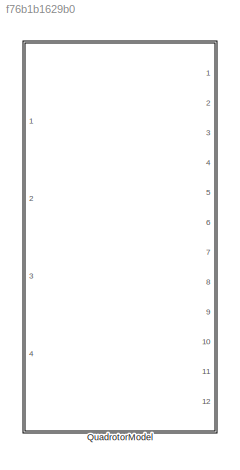
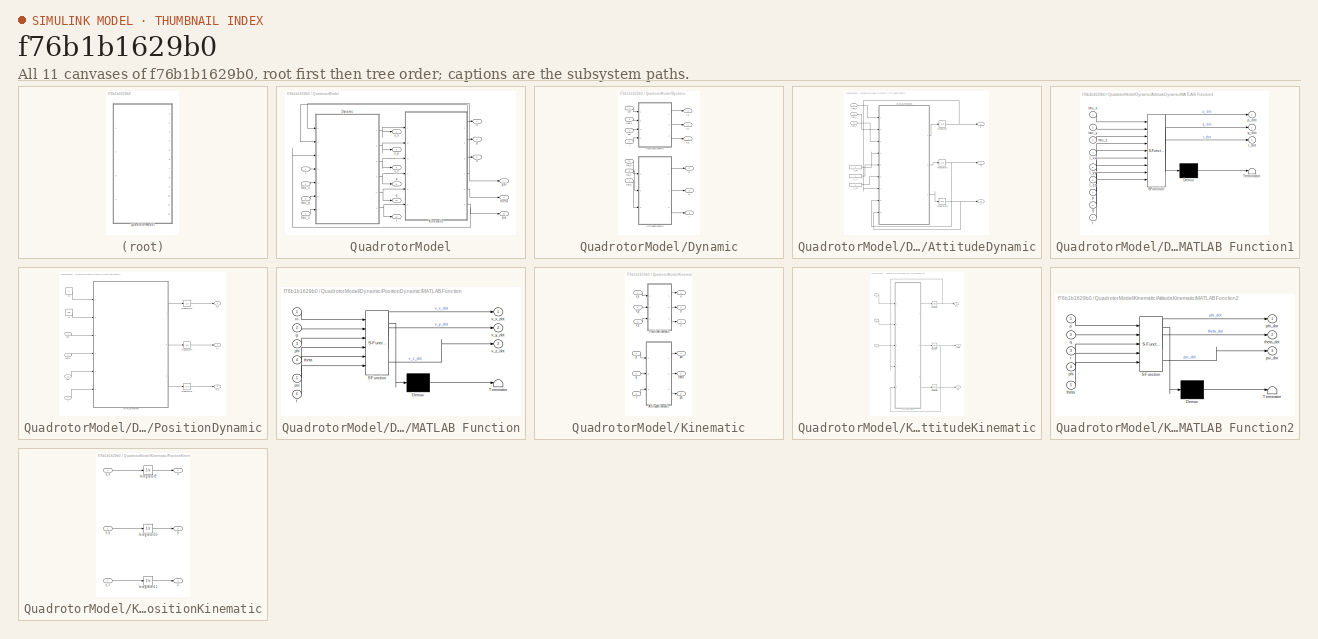
[diagram: thumbnail index - all 11 canvases of the model, root first then tree order]
MODEL slx_f76b1b1629b0
KIND model
CONFIG AbsTol = auto
CONFIG EnableMultiTasking = off
CONFIG FixedStep = auto
CONFIG MaxStep = auto
CONFIG MinStep = auto
CONFIG RelTol = 1e-3
CONFIG SampleTimeConstraint = Unconstrained
CONFIG SolverName = VariableStepAuto
CONFIG StartTime = 0.0
CONFIG StopTime = 10.0
WORKSPACE source: mxarray member
WORKSPACE x0 = 0
BLOCK [SubSystem] QuadrotorModel
  Ports = [4, 12]
  RequestExecContextInheritance = off
BLOCK [SubSystem] QuadrotorModel/Dynamic
  Ports = [7, 6]
  RequestExecContextInheritance = off
BLOCK [SubSystem] QuadrotorModel/Dynamic/AttitudeDynamic
  Ports = [3, 3]
  RequestExecContextInheritance = off
BLOCK [Constant] QuadrotorModel/Dynamic/AttitudeDynamic/I_xx
BLOCK [Constant] QuadrotorModel/Dynamic/AttitudeDynamic/I_yy
BLOCK [Constant] QuadrotorModel/Dynamic/AttitudeDynamic/I_zz
BLOCK [Integrator] QuadrotorModel/Dynamic/AttitudeDynamic/Integrator
  Ports = [1, 1]
BLOCK [Integrator] QuadrotorModel/Dynamic/AttitudeDynamic/Integrator1
  Ports = [1, 1]
BLOCK [Integrator] QuadrotorModel/Dynamic/AttitudeDynamic/Integrator2
  Ports = [1, 1]
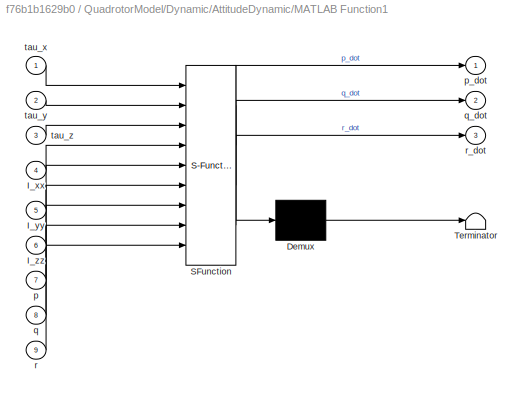
BLOCK [SubSystem] QuadrotorModel/Dynamic/AttitudeDynamic/MATLAB Function1
  ErrorFcn = Stateflow.Translate.translate
  PermitHierarchicalResolution = ExplicitOnly
  Ports = [9, 3]
  RequestExecContextInheritance = off
  SFBlockType = MATLAB Function
  TreatAsAtomicUnit = on
BLOCK [Demux] QuadrotorModel/Dynamic/AttitudeDynamic/MATLAB Function1/ Demux 
  Outputs = 1
  Ports = [1, 1]
BLOCK [S-Function] QuadrotorModel/Dynamic/AttitudeDynamic/MATLAB Function1/ SFunction 
  EnableBusSupport = off
  FunctionName = sf_sfun
  PortCounts = [9 4]
  Ports = [9, 4]
  SFcnIsStateOwnerBlock = off
  SFunctionDeploymentMode = off
  Tag = Stateflow S-Function 1
BLOCK [Terminator] QuadrotorModel/Dynamic/AttitudeDynamic/MATLAB Function1/ Terminator 
BLOCK [Inport] QuadrotorModel/Dynamic/AttitudeDynamic/MATLAB Function1/I_xx
  Port = 4
BLOCK [Inport] QuadrotorModel/Dynamic/AttitudeDynamic/MATLAB Function1/I_yy
  Port = 5
BLOCK [Inport] QuadrotorModel/Dynamic/AttitudeDynamic/MATLAB Function1/I_zz
  Port = 6
BLOCK [Inport] QuadrotorModel/Dynamic/AttitudeDynamic/MATLAB Function1/p
  Port = 7
BLOCK [Outport] QuadrotorModel/Dynamic/AttitudeDynamic/MATLAB Function1/p_dot
BLOCK [Inport] QuadrotorModel/Dynamic/AttitudeDynamic/MATLAB Function1/q
  Port = 8
BLOCK [Outport] QuadrotorModel/Dynamic/AttitudeDynamic/MATLAB Function1/q_dot
  Port = 2
BLOCK [Inport] QuadrotorModel/Dynamic/AttitudeDynamic/MATLAB Function1/r
  Port = 9
BLOCK [Outport] QuadrotorModel/Dynamic/AttitudeDynamic/MATLAB Function1/r_dot
  Port = 3
BLOCK [Inport] QuadrotorModel/Dynamic/AttitudeDynamic/MATLAB Function1/tau_x
BLOCK [Inport] QuadrotorModel/Dynamic/AttitudeDynamic/MATLAB Function1/tau_y
  Port = 2
BLOCK [Inport] QuadrotorModel/Dynamic/AttitudeDynamic/MATLAB Function1/tau_z
  Port = 3
BLOCK [Outport] QuadrotorModel/Dynamic/AttitudeDynamic/p
BLOCK [Outport] QuadrotorModel/Dynamic/AttitudeDynamic/q
  Port = 2
BLOCK [Outport] QuadrotorModel/Dynamic/AttitudeDynamic/r
  Port = 3
BLOCK [Inport] QuadrotorModel/Dynamic/AttitudeDynamic/tau_x
BLOCK [Inport] QuadrotorModel/Dynamic/AttitudeDynamic/tau_y
  Port = 2
BLOCK [Inport] QuadrotorModel/Dynamic/AttitudeDynamic/tau_z
  Port = 3
BLOCK [SubSystem] QuadrotorModel/Dynamic/PositionDynamic
  Ports = [4, 3]
  RequestExecContextInheritance = off
BLOCK [Integrator] QuadrotorModel/Dynamic/PositionDynamic/Integrator3
  Ports = [1, 1]
BLOCK [Integrator] QuadrotorModel/Dynamic/PositionDynamic/Integrator4
  Ports = [1, 1]
BLOCK [Integrator] QuadrotorModel/Dynamic/PositionDynamic/Integrator5
  Ports = [1, 1]
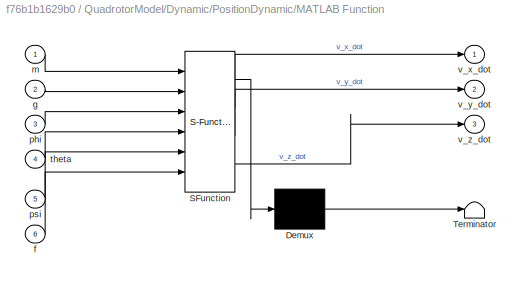
BLOCK [SubSystem] QuadrotorModel/Dynamic/PositionDynamic/MATLAB Function
  ErrorFcn = Stateflow.Translate.translate
  PermitHierarchicalResolution = ExplicitOnly
  Ports = [6, 3]
  RequestExecContextInheritance = off
  SFBlockType = MATLAB Function
  TreatAsAtomicUnit = on
BLOCK [Demux] QuadrotorModel/Dynamic/PositionDynamic/MATLAB Function/ Demux 
  Outputs = 1
  Ports = [1, 1]
BLOCK [S-Function] QuadrotorModel/Dynamic/PositionDynamic/MATLAB Function/ SFunction 
  EnableBusSupport = off
  FunctionName = sf_sfun
  PortCounts = [6 4]
  Ports = [6, 4]
  SFcnIsStateOwnerBlock = off
  SFunctionDeploymentMode = off
  Tag = Stateflow S-Function 2
BLOCK [Terminator] QuadrotorModel/Dynamic/PositionDynamic/MATLAB Function/ Terminator 
BLOCK [Inport] QuadrotorModel/Dynamic/PositionDynamic/MATLAB Function/f
  Port = 6
BLOCK [Inport] QuadrotorModel/Dynamic/PositionDynamic/MATLAB Function/g
  Port = 2
BLOCK [Inport] QuadrotorModel/Dynamic/PositionDynamic/MATLAB Function/m
BLOCK [Inport] QuadrotorModel/Dynamic/PositionDynamic/MATLAB Function/phi
  Port = 3
BLOCK [Inport] QuadrotorModel/Dynamic/PositionDynamic/MATLAB Function/psi
  Port = 5
BLOCK [Inport] QuadrotorModel/Dynamic/PositionDynamic/MATLAB Function/theta
  Port = 4
BLOCK [Outport] QuadrotorModel/Dynamic/PositionDynamic/MATLAB Function/v_x_dot
BLOCK [Outport] QuadrotorModel/Dynamic/PositionDynamic/MATLAB Function/v_y_dot
  Port = 2
BLOCK [Outport] QuadrotorModel/Dynamic/PositionDynamic/MATLAB Function/v_z_dot
  Port = 3
BLOCK [Inport] QuadrotorModel/Dynamic/PositionDynamic/f
  Port = 4
BLOCK [Constant] QuadrotorModel/Dynamic/PositionDynamic/g
  Value = 9.81
BLOCK [Constant] QuadrotorModel/Dynamic/PositionDynamic/m
BLOCK [Inport] QuadrotorModel/Dynamic/PositionDynamic/phi
BLOCK [Inport] QuadrotorModel/Dynamic/PositionDynamic/psi
  Port = 3
BLOCK [Inport] QuadrotorModel/Dynamic/PositionDynamic/theta
  Port = 2
BLOCK [Outport] QuadrotorModel/Dynamic/PositionDynamic/v_x
BLOCK [Outport] QuadrotorModel/Dynamic/PositionDynamic/v_y
  Port = 2
BLOCK [Outport] QuadrotorModel/Dynamic/PositionDynamic/v_z
  Port = 3
BLOCK [Inport] QuadrotorModel/Dynamic/f
  Port = 4
BLOCK [Outport] QuadrotorModel/Dynamic/p
  Port = 4
BLOCK [Inport] QuadrotorModel/Dynamic/phi
BLOCK [Inport] QuadrotorModel/Dynamic/psi
  Port = 3
BLOCK [Outport] QuadrotorModel/Dynamic/q
  Port = 5
BLOCK [Outport] QuadrotorModel/Dynamic/r
  Port = 6
BLOCK [Inport] QuadrotorModel/Dynamic/tau_x
  Port = 5
BLOCK [Inport] QuadrotorModel/Dynamic/tau_y
  Port = 6
BLOCK [Inport] QuadrotorModel/Dynamic/tau_z
  Port = 7
BLOCK [Inport] QuadrotorModel/Dynamic/theta
  Port = 2
BLOCK [Outport] QuadrotorModel/Dynamic/v_x
BLOCK [Outport] QuadrotorModel/Dynamic/v_y
  Port = 2
BLOCK [Outport] QuadrotorModel/Dynamic/v_z
  Port = 3
BLOCK [SubSystem] QuadrotorModel/Kinematic
  Ports = [6, 6]
  RequestExecContextInheritance = off
BLOCK [SubSystem] QuadrotorModel/Kinematic/AttitudeKinematic
  Ports = [3, 3]
  RequestExecContextInheritance = off
BLOCK [Integrator] QuadrotorModel/Kinematic/AttitudeKinematic/Integrator6
  Ports = [1, 1]
BLOCK [Integrator] QuadrotorModel/Kinematic/AttitudeKinematic/Integrator7
  Ports = [1, 1]
BLOCK [Integrator] QuadrotorModel/Kinematic/AttitudeKinematic/Integrator8
  Ports = [1, 1]
BLOCK [SubSystem] QuadrotorModel/Kinematic/AttitudeKinematic/MATLAB Function2
  ErrorFcn = Stateflow.Translate.translate
  PermitHierarchicalResolution = ExplicitOnly
  Ports = [5, 3]
  RequestExecContextInheritance = off
  SFBlockType = MATLAB Function
  TreatAsAtomicUnit = on
BLOCK [Demux] QuadrotorModel/Kinematic/AttitudeKinematic/MATLAB Function2/ Demux 
  Outputs = 1
  Ports = [1, 1]
BLOCK [S-Function] QuadrotorModel/Kinematic/AttitudeKinematic/MATLAB Function2/ SFunction 
  EnableBusSupport = off
  FunctionName = sf_sfun
  PortCounts = [5 4]
  Ports = [5, 4]
  SFcnIsStateOwnerBlock = off
  SFunctionDeploymentMode = off
  Tag = Stateflow S-Function 3
BLOCK [Terminator] QuadrotorModel/Kinematic/AttitudeKinematic/MATLAB Function2/ Terminator 
BLOCK [Inport] QuadrotorModel/Kinematic/AttitudeKinematic/MATLAB Function2/p
BLOCK [Inport] QuadrotorModel/Kinematic/AttitudeKinematic/MATLAB Function2/phi
  Port = 4
BLOCK [Outport] QuadrotorModel/Kinematic/AttitudeKinematic/MATLAB Function2/phi_dot
BLOCK [Outport] QuadrotorModel/Kinematic/AttitudeKinematic/MATLAB Function2/psi_dot
  Port = 3
BLOCK [Inport] QuadrotorModel/Kinematic/AttitudeKinematic/MATLAB Function2/q
  Port = 2
BLOCK [Inport] QuadrotorModel/Kinematic/AttitudeKinematic/MATLAB Function2/r
  Port = 3
BLOCK [Inport] QuadrotorModel/Kinematic/AttitudeKinematic/MATLAB Function2/theta
  Port = 5
BLOCK [Outport] QuadrotorModel/Kinematic/AttitudeKinematic/MATLAB Function2/theta_dot
  Port = 2
BLOCK [Inport] QuadrotorModel/Kinematic/AttitudeKinematic/p
BLOCK [Outport] QuadrotorModel/Kinematic/AttitudeKinematic/phi
BLOCK [Outport] QuadrotorModel/Kinematic/AttitudeKinematic/psi
  Port = 3
BLOCK [Inport] QuadrotorModel/Kinematic/AttitudeKinematic/q
  Port = 2
BLOCK [Inport] QuadrotorModel/Kinematic/AttitudeKinematic/r
  Port = 3
BLOCK [Outport] QuadrotorModel/Kinematic/AttitudeKinematic/theta
  Port = 2
BLOCK [SubSystem] QuadrotorModel/Kinematic/PositionKinematic
  Ports = [3, 3]
  RequestExecContextInheritance = off
BLOCK [Integrator] QuadrotorModel/Kinematic/PositionKinematic/Integrator10
  Ports = [1, 1]
BLOCK [Integrator] QuadrotorModel/Kinematic/PositionKinematic/Integrator11
  Ports = [1, 1]
BLOCK [Integrator] QuadrotorModel/Kinematic/PositionKinematic/Integrator9
  Ports = [1, 1]
BLOCK [Inport] QuadrotorModel/Kinematic/PositionKinematic/v_x
BLOCK [Inport] QuadrotorModel/Kinematic/PositionKinematic/v_y
  Port = 2
BLOCK [Inport] QuadrotorModel/Kinematic/PositionKinematic/v_z
  Port = 3
BLOCK [Outport] QuadrotorModel/Kinematic/PositionKinematic/x
BLOCK [Outport] QuadrotorModel/Kinematic/PositionKinematic/y
  Port = 2
BLOCK [Outport] QuadrotorModel/Kinematic/PositionKinematic/z
  Port = 3
BLOCK [Inport] QuadrotorModel/Kinematic/p
  Port = 4
BLOCK [Outport] QuadrotorModel/Kinematic/phi
  Port = 4
BLOCK [Outport] QuadrotorModel/Kinematic/psi
  Port = 6
BLOCK [Inport] QuadrotorModel/Kinematic/q
  Port = 5
BLOCK [Inport] QuadrotorModel/Kinematic/r
  Port = 6
BLOCK [Outport] QuadrotorModel/Kinematic/theta
  Port = 5
BLOCK [Inport] QuadrotorModel/Kinematic/v_x
BLOCK [Inport] QuadrotorModel/Kinematic/v_y
  Port = 2
BLOCK [Inport] QuadrotorModel/Kinematic/v_z
  Port = 3
BLOCK [Outport] QuadrotorModel/Kinematic/x
BLOCK [Outport] QuadrotorModel/Kinematic/y
  Port = 2
BLOCK [Outport] QuadrotorModel/Kinematic/z
  Port = 3
BLOCK [Inport] QuadrotorModel/f
BLOCK [Outport] QuadrotorModel/p
  Port = 8
BLOCK [Outport] QuadrotorModel/phi
  Port = 7
BLOCK [Outport] QuadrotorModel/psi
  Port = 11
BLOCK [Outport] QuadrotorModel/q
  Port = 10
BLOCK [Outport] QuadrotorModel/r
  Port = 12
BLOCK [Inport] QuadrotorModel/tau_x
  Port = 2
BLOCK [Inport] QuadrotorModel/tau_y
  Port = 3
BLOCK [Inport] QuadrotorModel/tau_z
  Port = 4
BLOCK [Outport] QuadrotorModel/theta
  Port = 9
BLOCK [Outport] QuadrotorModel/v_x
  Port = 2
BLOCK [Outport] QuadrotorModel/v_y
  Port = 4
BLOCK [Outport] QuadrotorModel/v_z
  Port = 6
BLOCK [Outport] QuadrotorModel/x
BLOCK [Outport] QuadrotorModel/y
  Port = 3
BLOCK [Outport] QuadrotorModel/z
  Port = 5
LINE QuadrotorModel/Dynamic/AttitudeDynamic/I_xx:1 -> QuadrotorModel/Dynamic/AttitudeDynamic/MATLAB Function1:4
LINE QuadrotorModel/Dynamic/AttitudeDynamic/I_yy:1 -> QuadrotorModel/Dynamic/AttitudeDynamic/MATLAB Function1:5
LINE QuadrotorModel/Dynamic/AttitudeDynamic/I_zz:1 -> QuadrotorModel/Dynamic/AttitudeDynamic/MATLAB Function1:6
NET QuadrotorModel/Dynamic/AttitudeDynamic/Integrator1:1 -> QuadrotorModel/Dynamic/AttitudeDynamic/MATLAB Function1:8, QuadrotorModel/Dynamic/AttitudeDynamic/q:1
NET QuadrotorModel/Dynamic/AttitudeDynamic/Integrator2:1 -> QuadrotorModel/Dynamic/AttitudeDynamic/MATLAB Function1:9, QuadrotorModel/Dynamic/AttitudeDynamic/r:1
NET QuadrotorModel/Dynamic/AttitudeDynamic/Integrator:1 -> QuadrotorModel/Dynamic/AttitudeDynamic/MATLAB Function1:7, QuadrotorModel/Dynamic/AttitudeDynamic/p:1
LINE QuadrotorModel/Dynamic/AttitudeDynamic/MATLAB Function1:1 -> QuadrotorModel/Dynamic/AttitudeDynamic/Integrator:1
LINE QuadrotorModel/Dynamic/AttitudeDynamic/MATLAB Function1:2 -> QuadrotorModel/Dynamic/AttitudeDynamic/Integrator1:1
LINE QuadrotorModel/Dynamic/AttitudeDynamic/MATLAB Function1:3 -> QuadrotorModel/Dynamic/AttitudeDynamic/Integrator2:1
LINE QuadrotorModel/Dynamic/AttitudeDynamic/tau_x:1 -> QuadrotorModel/Dynamic/AttitudeDynamic/MATLAB Function1:1
LINE QuadrotorModel/Dynamic/AttitudeDynamic/tau_y:1 -> QuadrotorModel/Dynamic/AttitudeDynamic/MATLAB Function1:2
LINE QuadrotorModel/Dynamic/AttitudeDynamic/tau_z:1 -> QuadrotorModel/Dynamic/AttitudeDynamic/MATLAB Function1:3
LINE QuadrotorModel/Dynamic/AttitudeDynamic:1 -> QuadrotorModel/Dynamic/p:1
LINE QuadrotorModel/Dynamic/AttitudeDynamic:2 -> QuadrotorModel/Dynamic/q:1
LINE QuadrotorModel/Dynamic/AttitudeDynamic:3 -> QuadrotorModel/Dynamic/r:1
LINE QuadrotorModel/Dynamic/PositionDynamic/Integrator3:1 -> QuadrotorModel/Dynamic/PositionDynamic/v_x:1
LINE QuadrotorModel/Dynamic/PositionDynamic/Integrator4:1 -> QuadrotorModel/Dynamic/PositionDynamic/v_y:1
LINE QuadrotorModel/Dynamic/PositionDynamic/Integrator5:1 -> QuadrotorModel/Dynamic/PositionDynamic/v_z:1
LINE QuadrotorModel/Dynamic/PositionDynamic/MATLAB Function:1 -> QuadrotorModel/Dynamic/PositionDynamic/Integrator3:1
LINE QuadrotorModel/Dynamic/PositionDynamic/MATLAB Function:2 -> QuadrotorModel/Dynamic/PositionDynamic/Integrator4:1
LINE QuadrotorModel/Dynamic/PositionDynamic/MATLAB Function:3 -> QuadrotorModel/Dynamic/PositionDynamic/Integrator5:1
LINE QuadrotorModel/Dynamic/PositionDynamic/f:1 -> QuadrotorModel/Dynamic/PositionDynamic/MATLAB Function:6
LINE QuadrotorModel/Dynamic/PositionDynamic/g:1 -> QuadrotorModel/Dynamic/PositionDynamic/MATLAB Function:2
LINE QuadrotorModel/Dynamic/PositionDynamic/m:1 -> QuadrotorModel/Dynamic/PositionDynamic/MATLAB Function:1
LINE QuadrotorModel/Dynamic/PositionDynamic/phi:1 -> QuadrotorModel/Dynamic/PositionDynamic/MATLAB Function:3
LINE QuadrotorModel/Dynamic/PositionDynamic/psi:1 -> QuadrotorModel/Dynamic/PositionDynamic/MATLAB Function:5
LINE QuadrotorModel/Dynamic/PositionDynamic/theta:1 -> QuadrotorModel/Dynamic/PositionDynamic/MATLAB Function:4
LINE QuadrotorModel/Dynamic/PositionDynamic:1 -> QuadrotorModel/Dynamic/v_x:1
LINE QuadrotorModel/Dynamic/PositionDynamic:2 -> QuadrotorModel/Dynamic/v_y:1
LINE QuadrotorModel/Dynamic/PositionDynamic:3 -> QuadrotorModel/Dynamic/v_z:1
LINE QuadrotorModel/Dynamic/f:1 -> QuadrotorModel/Dynamic/PositionDynamic:4
LINE QuadrotorModel/Dynamic/phi:1 -> QuadrotorModel/Dynamic/PositionDynamic:1
LINE QuadrotorModel/Dynamic/psi:1 -> QuadrotorModel/Dynamic/PositionDynamic:3
LINE QuadrotorModel/Dynamic/tau_x:1 -> QuadrotorModel/Dynamic/AttitudeDynamic:1
LINE QuadrotorModel/Dynamic/tau_y:1 -> QuadrotorModel/Dynamic/AttitudeDynamic:2
LINE QuadrotorModel/Dynamic/tau_z:1 -> QuadrotorModel/Dynamic/AttitudeDynamic:3
LINE QuadrotorModel/Dynamic/theta:1 -> QuadrotorModel/Dynamic/PositionDynamic:2
NET QuadrotorModel/Dynamic:1 -> QuadrotorModel/Kinematic:1, QuadrotorModel/v_x:1
NET QuadrotorModel/Dynamic:2 -> QuadrotorModel/Kinematic:2, QuadrotorModel/v_y:1
NET QuadrotorModel/Dynamic:3 -> QuadrotorModel/Kinematic:3, QuadrotorModel/v_z:1
NET QuadrotorModel/Dynamic:4 -> QuadrotorModel/Kinematic:4, QuadrotorModel/p:1
NET QuadrotorModel/Dynamic:5 -> QuadrotorModel/Kinematic:5, QuadrotorModel/q:1
NET QuadrotorModel/Dynamic:6 -> QuadrotorModel/Kinematic:6, QuadrotorModel/r:1
NET QuadrotorModel/Kinematic/AttitudeKinematic/Integrator6:1 -> QuadrotorModel/Kinematic/AttitudeKinematic/MATLAB Function2:4, QuadrotorModel/Kinematic/AttitudeKinematic/phi:1
NET QuadrotorModel/Kinematic/AttitudeKinematic/Integrator7:1 -> QuadrotorModel/Kinematic/AttitudeKinematic/MATLAB Function2:5, QuadrotorModel/Kinematic/AttitudeKinematic/theta:1
LINE QuadrotorModel/Kinematic/AttitudeKinematic/Integrator8:1 -> QuadrotorModel/Kinematic/AttitudeKinematic/psi:1
LINE QuadrotorModel/Kinematic/AttitudeKinematic/MATLAB Function2:1 -> QuadrotorModel/Kinematic/AttitudeKinematic/Integrator6:1
LINE QuadrotorModel/Kinematic/AttitudeKinematic/MATLAB Function2:2 -> QuadrotorModel/Kinematic/AttitudeKinematic/Integrator7:1
LINE QuadrotorModel/Kinematic/AttitudeKinematic/MATLAB Function2:3 -> QuadrotorModel/Kinematic/AttitudeKinematic/Integrator8:1
LINE QuadrotorModel/Kinematic/AttitudeKinematic/p:1 -> QuadrotorModel/Kinematic/AttitudeKinematic/MATLAB Function2:1
LINE QuadrotorModel/Kinematic/AttitudeKinematic/q:1 -> QuadrotorModel/Kinematic/AttitudeKinematic/MATLAB Function2:2
LINE QuadrotorModel/Kinematic/AttitudeKinematic/r:1 -> QuadrotorModel/Kinematic/AttitudeKinematic/MATLAB Function2:3
LINE QuadrotorModel/Kinematic/AttitudeKinematic:1 -> QuadrotorModel/Kinematic/phi:1
LINE QuadrotorModel/Kinematic/AttitudeKinematic:2 -> QuadrotorModel/Kinematic/theta:1
LINE QuadrotorModel/Kinematic/AttitudeKinematic:3 -> QuadrotorModel/Kinematic/psi:1
LINE QuadrotorModel/Kinematic/PositionKinematic/Integrator10:1 -> QuadrotorModel/Kinematic/PositionKinematic/y:1
LINE QuadrotorModel/Kinematic/PositionKinematic/Integrator11:1 -> QuadrotorModel/Kinematic/PositionKinematic/z:1
LINE QuadrotorModel/Kinematic/PositionKinematic/Integrator9:1 -> QuadrotorModel/Kinematic/PositionKinematic/x:1
LINE QuadrotorModel/Kinematic/PositionKinematic/v_x:1 -> QuadrotorModel/Kinematic/PositionKinematic/Integrator9:1
LINE QuadrotorModel/Kinematic/PositionKinematic/v_y:1 -> QuadrotorModel/Kinematic/PositionKinematic/Integrator10:1
LINE QuadrotorModel/Kinematic/PositionKinematic/v_z:1 -> QuadrotorModel/Kinematic/PositionKinematic/Integrator11:1
LINE QuadrotorModel/Kinematic/PositionKinematic:1 -> QuadrotorModel/Kinematic/x:1
LINE QuadrotorModel/Kinematic/PositionKinematic:2 -> QuadrotorModel/Kinematic/y:1
LINE QuadrotorModel/Kinematic/PositionKinematic:3 -> QuadrotorModel/Kinematic/z:1
LINE QuadrotorModel/Kinematic/p:1 -> QuadrotorModel/Kinematic/AttitudeKinematic:1
LINE QuadrotorModel/Kinematic/q:1 -> QuadrotorModel/Kinematic/AttitudeKinematic:2
LINE QuadrotorModel/Kinematic/r:1 -> QuadrotorModel/Kinematic/AttitudeKinematic:3
LINE QuadrotorModel/Kinematic/v_x:1 -> QuadrotorModel/Kinematic/PositionKinematic:1
LINE QuadrotorModel/Kinematic/v_y:1 -> QuadrotorModel/Kinematic/PositionKinematic:2
LINE QuadrotorModel/Kinematic/v_z:1 -> QuadrotorModel/Kinematic/PositionKinematic:3
LINE QuadrotorModel/Kinematic:1 -> QuadrotorModel/x:1
LINE QuadrotorModel/Kinematic:2 -> QuadrotorModel/y:1
LINE QuadrotorModel/Kinematic:3 -> QuadrotorModel/z:1
NET QuadrotorModel/Kinematic:4 -> QuadrotorModel/Dynamic:1, QuadrotorModel/phi:1
NET QuadrotorModel/Kinematic:5 -> QuadrotorModel/Dynamic:2, QuadrotorModel/theta:1
NET QuadrotorModel/Kinematic:6 -> QuadrotorModel/Dynamic:3, QuadrotorModel/psi:1
LINE QuadrotorModel/f:1 -> QuadrotorModel/Dynamic:4
LINE QuadrotorModel/tau_x:1 -> QuadrotorModel/Dynamic:5
LINE QuadrotorModel/tau_y:1 -> QuadrotorModel/Dynamic:6
LINE QuadrotorModel/tau_z:1 -> QuadrotorModel/Dynamic:7
note: NET lines group one-source signal fan-out (src -> all destinations, sorted); 1:1 wires keep LINE
CHART QuadrotorModel/Dynamic/AttitudeDynamic/MATLAB Function1 states=1 transitions=1
  STATE_LABEL 'eML_blk_kernel()'
  STATE_LABEL 'SCRIPT:\nfunction [p_dot, q_dot, r_dot] = AttitudeDynamic(tau_x, tau_y, tau_z, I_xx, I_yy, I_zz, p,q,r)\n\np_dot = (1/I_xx) * (tau_x + q *r * (I_yy-I_zz));\nq_dot = (1/I_yy) * (tau_y + p *r * (I_zz-I_xx));\nr_dot = (1/I_zz) * (tau_z + p *q * (I_xx-I_yy));\n\nend'
CHART QuadrotorModel/Dynamic/PositionDynamic/MATLAB Function states=1 transitions=1
  STATE_LABEL 'eML_blk_kernel()'
  STATE_LABEL 'SCRIPT:\nfunction [v_x_dot, v_y_dot, v_z_dot] = PositionDynamic(m, g, phi, theta, psi, f)\n\nv_x_dot = -f * (1/m) * (cos(psi) * sin(theta) * cos(phi) + sin(psi) * sin(phi));\nv_y_dot = -f * (1/m) * (sin(psi) * sin(theta) * cos(phi) - cos(psi) * sin(phi));\nv_z_dot = g - f * (1/m) * cos(phi) * cos(theta);\nend\n'
CHART QuadrotorModel/Kinematic/AttitudeKinematic/MATLAB Function2 states=1 transitions=1
  STATE_LABEL 'eML_blk_kernel()'
  STATE_LABEL 'SCRIPT:\nfunction [phi_dot, theta_dot, psi_dot] = AttitudeKinematic(p, q, r, phi, theta)\n\nphi_dot = p + q *tan(theta) * sin(phi) + r * tan(theta) * cos(phi);\ntheta_dot = q * cos(phi) - r * sin(phi);\npsi_dot = (q * sin(phi) + r *cos(phi) / cos(theta));\n\nend\n'
CHART  states=0 transitions=0
CHART  states=0 transitions=0
CHART  states=0 transitions=0
